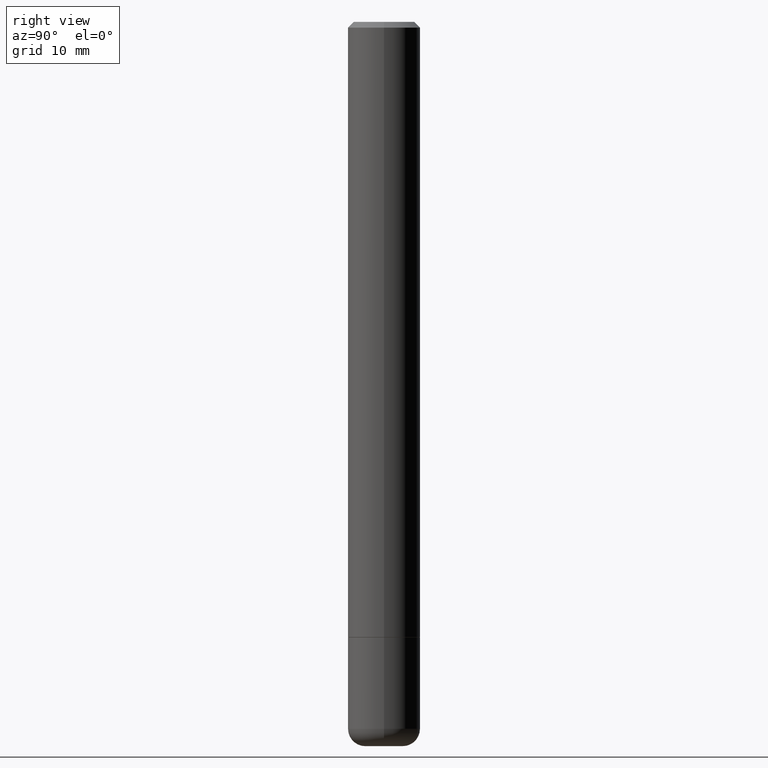
[diagram: clean part render]
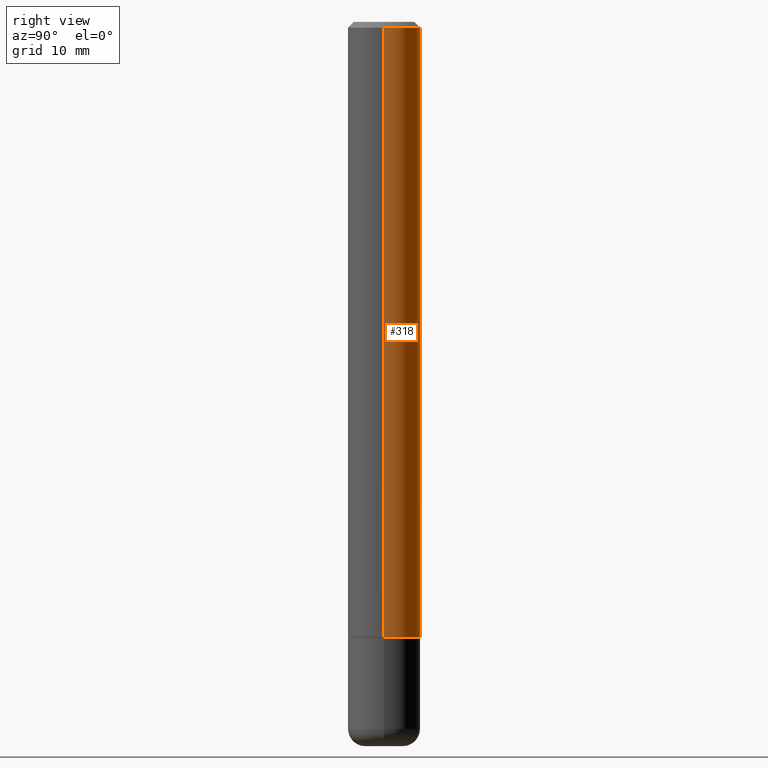
[diagram: same view with one face highlighted and labeled with its STEP entity id]
A machine part, right view. The second image highlights one B-rep face of the part: STEP entity #318.
In plain terms, the highlighted cylindrical surface (edge-blend (fillet) strip) has radius 3.175 mm, axis along (-0, 0, 1).
Its self-contained STEP definition (entity closure, byte-faithful):
#31 = VERTEX_POINT ( 'NONE', #464 ) ;
#43 = VERTEX_POINT ( 'NONE', #54 ) ;
#54 = CARTESIAN_POINT ( 'NONE',  ( 0.1249999999999993477, -9.273918764983002075E-16, -0.02000000000000009062 ) ) ;
#72 = DIRECTION ( 'NONE',  ( -2.445468806185136877E-29, 3.491481338843145188E-15, 1.000000000000000000 ) ) ;
#75 = LINE ( 'NONE', #400, #339 ) ;
#80 = CIRCLE ( 'NONE', #363, 0.1249999999999996253 ) ;
#99 = DIRECTION ( 'NONE',  ( -2.445468806185136597E-29, 3.491481338843145583E-15, 1.000000000000000000 ) ) ;
#102 = CARTESIAN_POINT ( 'NONE',  ( 0.000000000000000000, 0.000000000000000000, 0.000000000000000000 ) ) ;
#117 = CIRCLE ( 'NONE', #380, 0.1249999999999993477 ) ;
#118 = ORIENTED_EDGE ( 'NONE', *, *, #337, .T. ) ;
#145 = VERTEX_POINT ( 'NONE', #225 ) ;
#148 = ORIENTED_EDGE ( 'NONE', *, *, #480, .T. ) ;
#174 = VECTOR ( 'NONE', #315, 39.37007874015748143 ) ;
#178 = DIRECTION ( 'NONE',  ( -2.445468806185136597E-29, 3.491481338843145583E-15, 1.000000000000000000 ) ) ;
#184 = CARTESIAN_POINT ( 'NONE',  ( 4.890937612370295054E-31, -6.982962677686322424E-17, -0.02000000000000009062 ) ) ;
#208 = EDGE_CURVE ( 'NONE', #145, #43, #317, .T. ) ;
#211 = CARTESIAN_POINT ( 'NONE',  ( 5.194175744337230786E-29, -7.415906363702842194E-15, -2.124000000000000554 ) ) ;
#220 = EDGE_LOOP ( 'NONE', ( #118, #148, #418, #298 ) ) ;
#225 = CARTESIAN_POINT ( 'NONE',  ( 0.1249999999999996253, -8.288776698413623955E-15, -2.124000000000000554 ) ) ;
#242 = DIRECTION ( 'NONE',  ( 1.000000000000000000, -6.982962677686265922E-15, 4.876176775795935793E-29 ) ) ;
#298 = ORIENTED_EDGE ( 'NONE', *, *, #208, .F. ) ;
#315 = DIRECTION ( 'NONE',  ( -2.445468806185136877E-29, 3.491481338843145188E-15, 1.000000000000000000 ) ) ;
#317 = LINE ( 'NONE', #385, #174 ) ;
#318 = ADVANCED_FACE ( 'NONE', ( #360 ), #430, .T. ) ;
#326 = DIRECTION ( 'NONE',  ( 1.000000000000000000, -6.982962677686265922E-15, 0.000000000000000000 ) ) ;
#337 = EDGE_CURVE ( 'NONE', #145, #449, #80, .T. ) ;
#339 = VECTOR ( 'NONE', #72, 39.37007874015748143 ) ;
#355 = DIRECTION ( 'NONE',  ( 1.000000000000000000, -6.982962677686269077E-15, 0.000000000000000000 ) ) ;
#360 = FACE_OUTER_BOUND ( 'NONE', #220, .T. ) ;
#362 = CARTESIAN_POINT ( 'NONE',  ( -0.1249999999999996253, -2.854689575539726725E-15, -2.124000000000000554 ) ) ;
#363 = AXIS2_PLACEMENT_3D ( 'NONE', #211, #386, #355 ) ;
#380 = AXIS2_PLACEMENT_3D ( 'NONE', #184, #178, #326 ) ;
#385 = CARTESIAN_POINT ( 'NONE',  ( 0.1249999999999994865, -8.728703347107796903E-16, 6.095220969744894518E-30 ) ) ;
#386 = DIRECTION ( 'NONE',  ( -2.445468806185136597E-29, 3.491481338843145583E-15, 1.000000000000000000 ) ) ;
#400 = CARTESIAN_POINT ( 'NONE',  ( -0.1249999999999994865, 8.881784197001215839E-16, -6.148668862818606303E-30 ) ) ;
#405 = AXIS2_PLACEMENT_3D ( 'NONE', #102, #99, #242 ) ;
#418 = ORIENTED_EDGE ( 'NONE', *, *, #453, .F. ) ;
#430 = CYLINDRICAL_SURFACE ( 'NONE', #405, 0.1249999999999994865 ) ;
#449 = VERTEX_POINT ( 'NONE', #362 ) ;
#453 = EDGE_CURVE ( 'NONE', #43, #31, #117, .T. ) ;
#464 = CARTESIAN_POINT ( 'NONE',  ( -0.1249999999999993477, 8.030407079339155047E-16, -0.02000000000000009062 ) ) ;
#480 = EDGE_CURVE ( 'NONE', #449, #31, #75, .T. ) ;